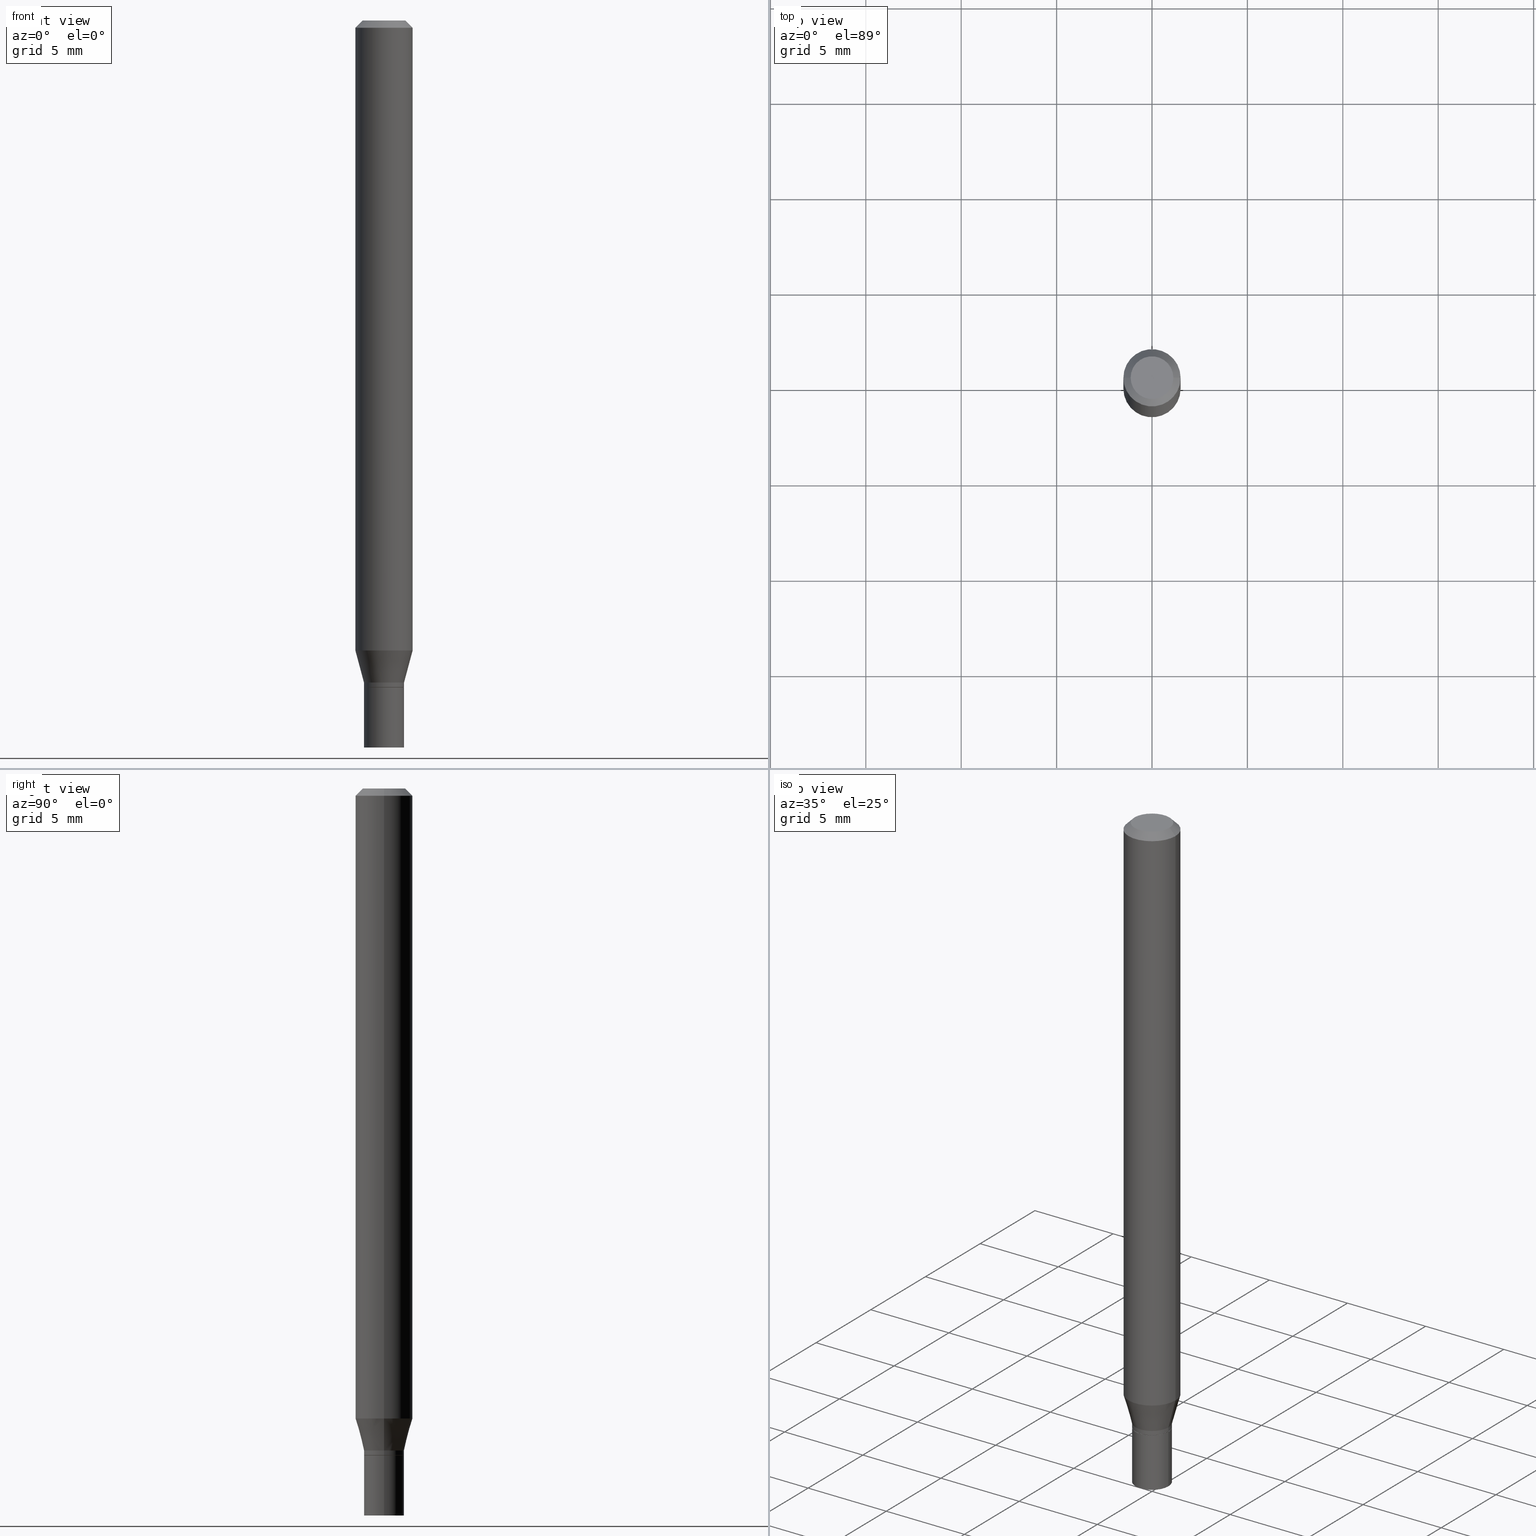
[diagram: canonical four-view strip — front | top / right | iso, engineering-drawing reading convention]
A machine part, canonical four-view strip (front | top / right | iso — engineering-drawing reading convention). The complete STEP part file that produces these views, byte-faithful:
ISO-10303-21;
HEADER;
FILE_DESCRIPTION (( 'STEP AP203' ),
    '1' );
FILE_NAME ('09270.STEP',
    '2024-03-14T18:13:27',
    ( '' ),
    ( '' ),
    'SwSTEP 2.0',
    'SolidWorks 2023',
    '' );
FILE_SCHEMA (( 'CONFIG_CONTROL_DESIGN' ));
ENDSEC;

DATA;
#1 = ORIENTED_EDGE ( 'NONE', *, *, #44, .F. ) ;
#2 = DIRECTION ( 'NONE',  ( 1.000000000000000000, -6.982962677686267499E-15, 4.876176775795936353E-29 ) ) ;
#3 = ORIENTED_EDGE ( 'NONE', *, *, #119, .T. ) ;
#4 = DIRECTION ( 'NONE',  ( -2.445468806185136597E-29, 3.491481338843145583E-15, 1.000000000000000000 ) ) ;
#5 = CIRCLE ( 'NONE', #368, 0.04134999999999999787 ) ;
#6 = CARTESIAN_POINT ( 'NONE',  ( 0.05904999999999999832, -4.647161662000212105E-16, -0.01499999999999999944 ) ) ;
#7 = VERTEX_POINT ( 'NONE', #9 ) ;
#8 = ORIENTED_EDGE ( 'NONE', *, *, #24, .F. ) ;
#9 = CARTESIAN_POINT ( 'NONE',  ( -0.05904999999999999832, -1.875798891048276269E-15, -0.01499999999999999944 ) ) ;
#10 = DIRECTION ( 'NONE',  ( -0.2588190451025217387, 5.211531920934551042E-15, 0.9659258262890679791 ) ) ;
#11 = CARTESIAN_POINT ( 'NONE',  ( 3.178724777524041310E-29, -4.538376532946583262E-15, -1.299842700706030918 ) ) ;
#12 = ORIENTED_EDGE ( 'NONE', *, *, #425, .T. ) ;
#13 = FACE_OUTER_BOUND ( 'NONE', #117, .T. ) ;
#14 = DIRECTION ( 'NONE',  ( 2.438088387897960049E-29, -3.491481338843145188E-15, -1.000000000000000000 ) ) ;
#15 = LINE ( 'NONE', #181, #462 ) ;
#16 = LINE ( 'NONE', #411, #347 ) ;
#17 = CARTESIAN_POINT ( 'NONE',  ( 0.000000000000000000, 0.000000000000000000, 0.000000000000000000 ) ) ;
#18 = DIRECTION ( 'NONE',  ( -2.445468806185136597E-29, 3.491481338843145583E-15, 1.000000000000000000 ) ) ;
#19 = CARTESIAN_POINT ( 'NONE',  ( 3.364720530430130200E-29, -4.803929174114285214E-15, -1.375900000000000123 ) ) ;
#20 = CONICAL_SURFACE ( 'NONE', #339, 0.04084999999999999742, 0.7853981633974739252 ) ;
#21 = COORDINATED_UNIVERSAL_TIME_OFFSET ( 5, 0, .BEHIND. ) ;
#22 = CARTESIAN_POINT ( 'NONE',  ( -0.04134999999999992154, -4.508374012208062298E-15, -1.375400000000000400 ) ) ;
#23 = ADVANCED_FACE ( 'NONE', ( #433 ), #461, .T. ) ;
#24 = EDGE_CURVE ( 'NONE', #296, #25, #360, .T. ) ;
#25 = VERTEX_POINT ( 'NONE', #386 ) ;
#26 = SHAPE_DEFINITION_REPRESENTATION ( #395, #158 ) ;
#27 = AXIS2_PLACEMENT_3D ( 'NONE', #396, #108, #148 ) ;
#28 = LOCAL_TIME ( 14, 13, 27.00000000000000000, #196 ) ;
#29 = PERSON_AND_ORGANIZATION_ROLE ( 'design_owner' ) ;
#30 = DIRECTION ( 'NONE',  ( -2.445468806185136597E-29, 3.491481338843145583E-15, 1.000000000000000000 ) ) ;
#31 = ORIENTED_EDGE ( 'NONE', *, *, #80, .F. ) ;
#32 = CARTESIAN_POINT ( 'NONE',  ( -0.04404999999999999888, 3.337856159934030687E-16, -2.090942999999208688E-16 ) ) ;
#33 = FACE_OUTER_BOUND ( 'NONE', #457, .T. ) ;
#34 = EDGE_CURVE ( 'NONE', #218, #341, #241, .T. ) ;
#35 = ORIENTED_EDGE ( 'NONE', *, *, #34, .T. ) ;
#36 = DIRECTION ( 'NONE',  ( 1.000000000000000000, -6.982962677686266711E-15, 4.876176775795936353E-29 ) ) ;
#37 = LINE ( 'NONE', #222, #151 ) ;
#38 = ORIENTED_EDGE ( 'NONE', *, *, #425, .F. ) ;
#39 = PLANE ( 'NONE',  #55 ) ;
#40 = ORIENTED_EDGE ( 'NONE', *, *, #224, .T. ) ;
#41 = DIRECTION ( 'NONE',  ( 1.000000000000000000, -6.982962677686261189E-15, 0.000000000000000000 ) ) ;
#42 = VECTOR ( 'NONE', #374, 39.37007874015748143 ) ;
#43 = LINE ( 'NONE', #463, #353 ) ;
#44 = EDGE_CURVE ( 'NONE', #333, #147, #98, .T. ) ;
#45 = VERTEX_POINT ( 'NONE', #338 ) ;
#46 = CARTESIAN_POINT ( 'NONE',  ( -0.04084999999999999742, -4.513672466556283912E-15, -1.375900000000000123 ) ) ;
#47 = CYLINDRICAL_SURFACE ( 'NONE', #130, 0.04134999999999992154 ) ;
#48 = AXIS2_PLACEMENT_3D ( 'NONE', #81, #18, #266 ) ;
#49 = EDGE_CURVE ( 'NONE', #254, #7, #412, .T. ) ;
#50 = CARTESIAN_POINT ( 'NONE',  ( 5.113335882009178277E-45, -7.300488465081862281E-31, -2.090942999999186255E-16 ) ) ;
#51 =( CONVERSION_BASED_UNIT ( 'INCH', #410 ) LENGTH_UNIT ( ) NAMED_UNIT ( #422 ) );
#52 = DIRECTION ( 'NONE',  ( -2.445468806185136877E-29, 3.491481338843145188E-15, 1.000000000000000000 ) ) ;
#53 = EDGE_CURVE ( 'NONE', #341, #218, #261, .T. ) ;
#54 = AXIS2_PLACEMENT_3D ( 'NONE', #269, #194, #343 ) ;
#55 = AXIS2_PLACEMENT_3D ( 'NONE', #280, #146, #74 ) ;
#56 = DIRECTION ( 'NONE',  ( -2.445468806185136877E-29, 3.491481338843145188E-15, 1.000000000000000000 ) ) ;
#57 = COORDINATED_UNIVERSAL_TIME_OFFSET ( 5, 0, .BEHIND. ) ;
#58 = EDGE_CURVE ( 'NONE', #437, #228, #16, .T. ) ;
#59 = VERTEX_POINT ( 'NONE', #22 ) ;
#60 = DIRECTION ( 'NONE',  ( 0.000000000000000000, 0.000000000000000000, 1.000000000000000000 ) ) ;
#61 = EDGE_CURVE ( 'NONE', #333, #7, #37, .T. ) ;
#62 = CIRCLE ( 'NONE', #292, 0.04084999999999999742 ) ;
#63 = APPROVAL_DATE_TIME ( #340, #93 ) ;
#64 = APPROVAL_PERSON_ORGANIZATION ( #157, #256, #416 ) ;
#65 = ORIENTED_EDGE ( 'NONE', *, *, #173, .T. ) ;
#66 = CARTESIAN_POINT ( 'NONE',  ( -0.04084999999999999742, -4.511023239382173499E-15, -1.375900000000000123 ) ) ;
#67 = ORIENTED_EDGE ( 'NONE', *, *, #428, .T. ) ;
#68 = CARTESIAN_POINT ( 'NONE',  ( 3.363497796027037398E-29, -4.802183433444863710E-15, -1.375400000000000400 ) ) ;
#69 = VECTOR ( 'NONE', #83, 39.37007874015748143 ) ;
#70 = CARTESIAN_POINT ( 'NONE',  ( 0.04084999999999999742, -5.089183199497769152E-15, -1.375900000000000123 ) ) ;
#71 = DIRECTION ( 'NONE',  ( 1.000000000000000000, -6.982962677686262766E-15, 0.000000000000000000 ) ) ;
#72 = ORIENTED_EDGE ( 'NONE', *, *, #373, .T. ) ;
#73 = PLANE ( 'NONE',  #143 ) ;
#74 = DIRECTION ( 'NONE',  ( 1.000000000000000000, -6.982962677686265922E-15, 4.876176775795935793E-29 ) ) ;
#75 = CARTESIAN_POINT ( 'NONE',  ( 2.887455067223607679E-16, 0.04134999999999519615, -1.375900000000000567 ) ) ;
#76 = CARTESIAN_POINT ( 'NONE',  ( 3.075995059520799729E-16, 0.04404999999999999888, -2.583469029759998662E-16 ) ) ;
#77 = CIRCLE ( 'NONE', #163, 0.05904999999999999832 ) ;
#78 = ORGANIZATION ( 'UNSPECIFIED', 'UNSPECIFIED', '' ) ;
#79 = MANIFOLD_SOLID_BREP ( 'Body-Move/Copy2[1]', #162 ) ;
#80 = EDGE_CURVE ( 'NONE', #356, #45, #5, .T. ) ;
#81 = CARTESIAN_POINT ( 'NONE',  ( 3.178724777524041310E-29, -4.538376532946583262E-15, -1.299842700706030918 ) ) ;
#82 = DIRECTION ( 'NONE',  ( 1.000000000000000000, -6.982962677686266711E-15, 0.000000000000000000 ) ) ;
#83 = DIRECTION ( 'NONE',  ( -0.7071067811865656694, 7.493145998870420424E-15, 0.7071067811865294761 ) ) ;
#84 = EDGE_CURVE ( 'NONE', #25, #437, #310, .T. ) ;
#85 = CONICAL_SURFACE ( 'NONE', #197, 0.05904999999999999832, 0.7853981633974553844 ) ;
#86 =( GEOMETRIC_REPRESENTATION_CONTEXT ( 3 ) GLOBAL_UNCERTAINTY_ASSIGNED_CONTEXT ( ( #322 ) ) GLOBAL_UNIT_ASSIGNED_CONTEXT ( ( #51, #301, #329 ) ) REPRESENTATION_CONTEXT ( 'NONE', 'WORKASPACE' ) );
#87 = DIRECTION ( 'NONE',  ( -2.445468806185136597E-29, 3.491481338843145583E-15, 1.000000000000000000 ) ) ;
#88 = FACE_OUTER_BOUND ( 'NONE', #316, .T. ) ;
#89 = PERSON_AND_ORGANIZATION ( #308, #78 ) ;
#90 = ORIENTED_EDGE ( 'NONE', *, *, #193, .F. ) ;
#91 = CC_DESIGN_SECURITY_CLASSIFICATION ( #278, ( #390 ) ) ;
#92 = DATE_AND_TIME ( #421, #243 ) ;
#93 = APPROVAL ( #346, 'UNSPECIFIED' ) ;
#94 = APPROVAL_DATE_TIME ( #92, #378 ) ;
#95 = ADVANCED_FACE ( 'NONE', ( #440 ), #73, .F. ) ;
#96 = DATE_TIME_ROLE ( 'classification_date' ) ;
#97 = CC_DESIGN_DATE_AND_TIME_ASSIGNMENT ( #200, #96, ( #278 ) ) ;
#98 = CIRCLE ( 'NONE', #363, 0.04404999999999999888 ) ;
#99 = AXIS2_PLACEMENT_3D ( 'NONE', #19, #30, #112 ) ;
#100 = LOCAL_TIME ( 14, 13, 27.00000000000000000, #57 ) ;
#101 = ORIENTED_EDGE ( 'NONE', *, *, #399, .F. ) ;
#102 = DIRECTION ( 'NONE',  ( 2.438088387897960049E-29, -3.491481338843145188E-15, -1.000000000000000000 ) ) ;
#103 = PRODUCT ( '09270', '09270', '', ( #164 ) ) ;
#104 = CARTESIAN_POINT ( 'NONE',  ( 0.04404999999999999888, -3.798447818264464023E-16, -2.090942999999162343E-16 ) ) ;
#105 = DIRECTION ( 'NONE',  ( 1.000000000000000000, -6.982962677686265922E-15, 4.876176775795935793E-29 ) ) ;
#106 = VERTEX_POINT ( 'NONE', #66 ) ;
#107 = ORIENTED_EDGE ( 'NONE', *, *, #315, .T. ) ;
#108 = DIRECTION ( 'NONE',  ( -2.445468806185136597E-29, 3.491481338843145583E-15, 1.000000000000000000 ) ) ;
#109 = VECTOR ( 'NONE', #10, 39.37007874015748854 ) ;
#110 = ORIENTED_EDGE ( 'NONE', *, *, #275, .F. ) ;
#111 = CARTESIAN_POINT ( 'NONE',  ( -0.04134999999999992154, -4.297002993484647567E-15, -1.365900000000000114 ) ) ;
#112 = DIRECTION ( 'NONE',  ( 1.000000000000000000, -6.982962677686261189E-15, 0.000000000000000000 ) ) ;
#113 = CARTESIAN_POINT ( 'NONE',  ( 3.364720530430130200E-29, -4.803929174114285214E-15, -1.375900000000000123 ) ) ;
#114 = EDGE_LOOP ( 'NONE', ( #298, #394, #264, #167 ) ) ;
#115 = PLANE ( 'NONE',  #427 ) ;
#116 = DIRECTION ( 'NONE',  ( -1.000000000000000000, 6.982962677686266711E-15, 0.000000000000000000 ) ) ;
#117 = EDGE_LOOP ( 'NONE', ( #40, #12, #90, #366 ) ) ;
#118 = AXIS2_PLACEMENT_3D ( 'NONE', #203, #350, #355 ) ;
#119 = EDGE_CURVE ( 'NONE', #7, #252, #215, .T. ) ;
#120 = CYLINDRICAL_SURFACE ( 'NONE', #271, 0.05904999999999999832 ) ;
#121 = ORIENTED_EDGE ( 'NONE', *, *, #61, .F. ) ;
#122 = DIRECTION ( 'NONE',  ( 1.000000000000000000, -6.982962677686262766E-15, 0.000000000000000000 ) ) ;
#123 = FACE_OUTER_BOUND ( 'NONE', #257, .T. ) ;
#124 = CIRCLE ( 'NONE', #451, 0.04134999999999999787 ) ;
#125 = LINE ( 'NONE', #184, #109 ) ;
#126 = ORIENTED_EDGE ( 'NONE', *, *, #345, .T. ) ;
#127 = ADVANCED_FACE ( 'NONE', ( #88 ), #327, .T. ) ;
#128 = PERSON_AND_ORGANIZATION ( #308, #78 ) ;
#129 = APPROVAL_STATUS ( 'not_yet_approved' ) ;
#130 = AXIS2_PLACEMENT_3D ( 'NONE', #262, #299, #404 ) ;
#131 = PERSON_AND_ORGANIZATION_ROLE ( 'creator' ) ;
#132 = PRODUCT_RELATED_PRODUCT_CATEGORY ( 'detail', '', ( #103 ) ) ;
#133 = PERSON_AND_ORGANIZATION ( #308, #78 ) ;
#134 = AXIS2_PLACEMENT_3D ( 'NONE', #250, #4, #36 ) ;
#135 = APPROVAL_PERSON_ORGANIZATION ( #128, #93, #240 ) ;
#136 = DIRECTION ( 'NONE',  ( -2.445468806185136877E-29, 3.491481338843145188E-15, 1.000000000000000000 ) ) ;
#137 = ORIENTED_EDGE ( 'NONE', *, *, #160, .T. ) ;
#138 = ADVANCED_FACE ( 'NONE', ( #33 ), #210, .T. ) ;
#139 = DIRECTION ( 'NONE',  ( 1.000000000000000000, -6.982962677686262766E-15, 0.000000000000000000 ) ) ;
#140 = ORIENTED_EDGE ( 'NONE', *, *, #53, .F. ) ;
#141 = CYLINDRICAL_SURFACE ( 'NONE', #285, 0.04134999999999999787 ) ;
#142 = ORIENTED_EDGE ( 'NONE', *, *, #399, .T. ) ;
#143 = AXIS2_PLACEMENT_3D ( 'NONE', #75, #14, #202 ) ;
#144 = DIRECTION ( 'NONE',  ( -2.445468806185136597E-29, 3.491481338843145583E-15, 1.000000000000000000 ) ) ;
#145 = CC_DESIGN_APPROVAL ( #256, ( #282 ) ) ;
#146 = DIRECTION ( 'NONE',  ( -2.438088387897960049E-29, 3.491481338843145188E-15, 1.000000000000000000 ) ) ;
#147 = VERTEX_POINT ( 'NONE', #104 ) ;
#148 = DIRECTION ( 'NONE',  ( 1.000000000000000000, -6.982962677686262766E-15, 0.000000000000000000 ) ) ;
#149 = DIRECTION ( 'NONE',  ( -2.445468806185136597E-29, 3.491481338843145583E-15, 1.000000000000000000 ) ) ;
#150 = CARTESIAN_POINT ( 'NONE',  ( 0.04134999999999999787, -5.092674680836612159E-15, -1.375900000000000123 ) ) ;
#151 = VECTOR ( 'NONE', #371, 39.37007874015748854 ) ;
#152 = CARTESIAN_POINT ( 'NONE',  ( -0.04134999999999992154, 2.938094212368008694E-16, -2.033979659820399598E-30 ) ) ;
#153 = CARTESIAN_POINT ( 'NONE',  ( 5.113335882009178277E-45, -7.300488465081862281E-31, -2.090942999999186255E-16 ) ) ;
#154 = DIRECTION ( 'NONE',  ( -1.000000000000000000, 6.982962677686266711E-15, 0.000000000000000000 ) ) ;
#155 = ADVANCED_FACE ( 'NONE', ( #312 ), #85, .T. ) ;
#156 = ORIENTED_EDGE ( 'NONE', *, *, #428, .F. ) ;
#157 = PERSON_AND_ORGANIZATION ( #308, #78 ) ;
#158 = ADVANCED_BREP_SHAPE_REPRESENTATION ( '09270', ( #79, #236, #445 ), #86 ) ;
#159 = ORIENTED_EDGE ( 'NONE', *, *, #290, .T. ) ;
#160 = EDGE_CURVE ( 'NONE', #228, #254, #77, .T. ) ;
#161 = CALENDAR_DATE ( 2024, 14, 3 ) ;
#162 = CLOSED_SHELL ( 'NONE', ( #303, #201, #138, #95 ) ) ;
#163 = AXIS2_PLACEMENT_3D ( 'NONE', #11, #192, #349 ) ;
#164 = MECHANICAL_CONTEXT ( 'NONE', #452, 'mechanical' ) ;
#165 = APPROVAL_DATE_TIME ( #189, #256 ) ;
#166 = CARTESIAN_POINT ( 'NONE',  ( 3.668203209277704895E-29, -5.237222008264718177E-15, -1.500000000000000222 ) ) ;
#167 = ORIENTED_EDGE ( 'NONE', *, *, #119, .F. ) ;
#168 = AXIS2_PLACEMENT_3D ( 'NONE', #170, #289, #397 ) ;
#169 = CARTESIAN_POINT ( 'NONE',  ( 3.364720530430130200E-29, -4.803929174114285214E-15, -1.375900000000000123 ) ) ;
#170 = CARTESIAN_POINT ( 'NONE',  ( 3.340265842368278094E-29, -4.769014360725852776E-15, -1.365900000000000114 ) ) ;
#171 = EDGE_LOOP ( 'NONE', ( #375, #156 ) ) ;
#172 = FACE_OUTER_BOUND ( 'NONE', #398, .T. ) ;
#173 = EDGE_CURVE ( 'NONE', #147, #252, #314, .T. ) ;
#174 = DIRECTION ( 'NONE',  ( -2.445468806185136597E-29, 3.491481338843145583E-15, 1.000000000000000000 ) ) ;
#175 = ORIENTED_EDGE ( 'NONE', *, *, #61, .T. ) ;
#176 = AXIS2_PLACEMENT_3D ( 'NONE', #438, #206, #2 ) ;
#177 = PLANE ( 'NONE',  #227 ) ;
#178 = CARTESIAN_POINT ( 'NONE',  ( 0.05904999999999999832, -4.950720479063956605E-15, -1.299842700706030918 ) ) ;
#179 = DIRECTION ( 'NONE',  ( 1.000000000000000000, -6.982962677686266711E-15, 0.000000000000000000 ) ) ;
#180 = ORIENTED_EDGE ( 'NONE', *, *, #84, .T. ) ;
#181 = CARTESIAN_POINT ( 'NONE',  ( -0.04134999999999999787, 2.938094212368014117E-16, -2.033979659820403452E-30 ) ) ;
#182 = CIRCLE ( 'NONE', #456, 0.04084999999999999742 ) ;
#183 = CARTESIAN_POINT ( 'NONE',  ( 3.668203209277705088E-31, -5.237222008264718399E-17, -0.01499999999999999944 ) ) ;
#184 = CARTESIAN_POINT ( 'NONE',  ( -0.04134999999999992154, -4.475204939489051364E-15, -1.365900000000000114 ) ) ;
#185 = PERSON_AND_ORGANIZATION_ROLE ( 'creator' ) ;
#186 = VECTOR ( 'NONE', #56, 39.37007874015748143 ) ;
#187 = AXIS2_PLACEMENT_3D ( 'NONE', #50, #335, #291 ) ;
#188 = CONICAL_SURFACE ( 'NONE', #419, 0.05904999999999999832, 0.7853981633974553844 ) ;
#189 = DATE_AND_TIME ( #161, #28 ) ;
#190 = EDGE_LOOP ( 'NONE', ( #212, #231, #281, #324 ) ) ;
#191 = ORIENTED_EDGE ( 'NONE', *, *, #315, .F. ) ;
#192 = DIRECTION ( 'NONE',  ( -2.445468806185136597E-29, 3.491481338843145583E-15, 1.000000000000000000 ) ) ;
#193 = EDGE_CURVE ( 'NONE', #437, #204, #267, .T. ) ;
#194 = DIRECTION ( 'NONE',  ( -2.445468806185136597E-29, 3.491481338843145583E-15, 1.000000000000000000 ) ) ;
#195 = EDGE_LOOP ( 'NONE', ( #198, #142, #31, #286 ) ) ;
#196 = COORDINATED_UNIVERSAL_TIME_OFFSET ( 5, 0, .BEHIND. ) ;
#197 = AXIS2_PLACEMENT_3D ( 'NONE', #207, #239, #116 ) ;
#198 = ORIENTED_EDGE ( 'NONE', *, *, #53, .T. ) ;
#199 = LOCAL_TIME ( 14, 13, 27.00000000000000000, #21 ) ;
#200 = DATE_AND_TIME ( #381, #409 ) ;
#201 = ADVANCED_FACE ( 'NONE', ( #352 ), #39, .F. ) ;
#202 = DIRECTION ( 'NONE',  ( -1.000000000000000000, 6.982962677686265922E-15, -4.876176775795935793E-29 ) ) ;
#203 = CARTESIAN_POINT ( 'NONE',  ( 0.000000000000000000, 0.000000000000000000, 0.000000000000000000 ) ) ;
#204 = VERTEX_POINT ( 'NONE', #111 ) ;
#205 = EDGE_LOOP ( 'NONE', ( #137, #330, #414, #258 ) ) ;
#206 = DIRECTION ( 'NONE',  ( -2.445468806185136597E-29, 3.491481338843145583E-15, 1.000000000000000000 ) ) ;
#207 = CARTESIAN_POINT ( 'NONE',  ( 3.668203209277705088E-31, -5.237222008264718399E-17, -0.01499999999999999944 ) ) ;
#208 = CIRCLE ( 'NONE', #187, 0.04404999999999999888 ) ;
#209 = DIRECTION ( 'NONE',  ( -2.445468806185136597E-29, 3.491481338843145583E-15, 1.000000000000000000 ) ) ;
#210 = CYLINDRICAL_SURFACE ( 'NONE', #118, 0.04134999999999999787 ) ;
#211 = DIRECTION ( 'NONE',  ( -2.445468806185136597E-29, 3.491481338843145583E-15, 1.000000000000000000 ) ) ;
#212 = ORIENTED_EDGE ( 'NONE', *, *, #443, .F. ) ;
#213 = DIRECTION ( 'NONE',  ( 0.7071067811865524577, -7.319954787623271823E-15, -0.7071067811865424657 ) ) ;
#214 = EDGE_LOOP ( 'NONE', ( #159, #288, #249, #8 ) ) ;
#215 = CIRCLE ( 'NONE', #408, 0.05904999999999999832 ) ;
#216 = ORIENTED_EDGE ( 'NONE', *, *, #233, .T. ) ;
#217 = DIRECTION ( 'NONE',  ( -1.000000000000000000, 6.982962677686265922E-15, -4.876176775795935793E-29 ) ) ;
#218 = VERTEX_POINT ( 'NONE', #388 ) ;
#219 = ORIENTED_EDGE ( 'NONE', *, *, #233, .F. ) ;
#220 = DIRECTION ( 'NONE',  ( -2.445468806185136597E-29, 3.491481338843145583E-15, 1.000000000000000000 ) ) ;
#221 = DIRECTION ( 'NONE',  ( -2.445468806185136597E-29, 3.491481338843145583E-15, 1.000000000000000000 ) ) ;
#222 = CARTESIAN_POINT ( 'NONE',  ( -0.05904999999999999832, 3.599717260347268549E-16, -0.01499999999999999944 ) ) ;
#223 = CARTESIAN_POINT ( 'NONE',  ( 3.668203209277705088E-31, -5.237222008264718399E-17, -0.01499999999999999944 ) ) ;
#224 = EDGE_CURVE ( 'NONE', #25, #59, #385, .T. ) ;
#225 = VECTOR ( 'NONE', #321, 39.37007874015748143 ) ;
#226 = CARTESIAN_POINT ( 'NONE',  ( 0.04134999999999992154, -5.057759867448178932E-15, -1.365900000000000114 ) ) ;
#227 = AXIS2_PLACEMENT_3D ( 'NONE', #76, #102, #217 ) ;
#228 = VERTEX_POINT ( 'NONE', #178 ) ;
#229 = DIRECTION ( 'NONE',  ( 2.445468806185136597E-29, -3.491481338843145583E-15, -1.000000000000000000 ) ) ;
#230 = CC_DESIGN_PERSON_AND_ORGANIZATION_ASSIGNMENT ( #133, #185, ( #390 ) ) ;
#231 = ORIENTED_EDGE ( 'NONE', *, *, #275, .T. ) ;
#232 = APPLICATION_PROTOCOL_DEFINITION ( 'international standard', 'config_control_design', 1994, #293 ) ;
#233 = EDGE_CURVE ( 'NONE', #59, #25, #242, .T. ) ;
#234 = AXIS2_PLACEMENT_3D ( 'NONE', #362, #144, #287 ) ;
#235 = DIRECTION ( 'NONE',  ( 0.2588190451025217387, 1.565188264969619207E-15, 0.9659258262890679791 ) ) ;
#236 = MANIFOLD_SOLID_BREP ( 'Body-Move/Copy2[2]', #450 ) ;
#237 = EDGE_LOOP ( 'NONE', ( #377, #107 ) ) ;
#238 = COORDINATED_UNIVERSAL_TIME_OFFSET ( 5, 0, .BEHIND. ) ;
#239 = DIRECTION ( 'NONE',  ( 2.445468806185136597E-29, -3.491481338843145583E-15, -1.000000000000000000 ) ) ;
#240 = APPROVAL_ROLE ( '' ) ;
#241 = CIRCLE ( 'NONE', #300, 0.04134999999999999787 ) ;
#242 = CIRCLE ( 'NONE', #334, 0.04134999999999992154 ) ;
#243 = LOCAL_TIME ( 14, 13, 27.00000000000000000, #309 ) ;
#244 = ADVANCED_FACE ( 'NONE', ( #431 ), #115, .F. ) ;
#245 = APPLICATION_PROTOCOL_DEFINITION ( 'international standard', 'config_control_design', 1994, #452 ) ;
#246 = DIRECTION ( 'NONE',  ( -2.445468806185136877E-29, 3.491481338843145188E-15, 1.000000000000000000 ) ) ;
#247 = CARTESIAN_POINT ( 'NONE',  ( 0.04134999999999992154, -2.887455067223266003E-16, 2.016299096791615782E-30 ) ) ;
#248 = DIRECTION ( 'NONE',  ( 1.000000000000000000, -6.982962677686261189E-15, 0.000000000000000000 ) ) ;
#249 = ORIENTED_EDGE ( 'NONE', *, *, #224, .F. ) ;
#250 = CARTESIAN_POINT ( 'NONE',  ( 0.000000000000000000, 0.000000000000000000, 0.000000000000000000 ) ) ;
#251 = ADVANCED_FACE ( 'NONE', ( #441 ), #260, .T. ) ;
#252 = VERTEX_POINT ( 'NONE', #6 ) ;
#253 = VECTOR ( 'NONE', #246, 39.37007874015748143 ) ;
#254 = VERTEX_POINT ( 'NONE', #429 ) ;
#255 = FACE_OUTER_BOUND ( 'NONE', #432, .T. ) ;
#256 = APPROVAL ( #129, 'UNSPECIFIED' ) ;
#257 = EDGE_LOOP ( 'NONE', ( #442, #65, #72, #121 ) ) ;
#258 = ORIENTED_EDGE ( 'NONE', *, *, #319, .F. ) ;
#259 = FACE_OUTER_BOUND ( 'NONE', #195, .T. ) ;
#260 = CYLINDRICAL_SURFACE ( 'NONE', #134, 0.05904999999999999832 ) ;
#261 = CIRCLE ( 'NONE', #54, 0.04134999999999999787 ) ;
#262 = CARTESIAN_POINT ( 'NONE',  ( 0.000000000000000000, 0.000000000000000000, 0.000000000000000000 ) ) ;
#263 = DIRECTION ( 'NONE',  ( -2.445468806185136597E-29, 3.491481338843145583E-15, 1.000000000000000000 ) ) ;
#264 = ORIENTED_EDGE ( 'NONE', *, *, #319, .T. ) ;
#265 = CARTESIAN_POINT ( 'NONE',  ( 3.364720530430130200E-29, -4.803929174114285214E-15, -1.375900000000000123 ) ) ;
#266 = DIRECTION ( 'NONE',  ( 1.000000000000000000, -6.982962677686273021E-15, 0.000000000000000000 ) ) ;
#267 = CIRCLE ( 'NONE', #168, 0.04134999999999992154 ) ;
#268 = ADVANCED_FACE ( 'NONE', ( #255 ), #393, .T. ) ;
#269 = CARTESIAN_POINT ( 'NONE',  ( 3.668203209277704895E-29, -5.237222008264718177E-15, -1.500000000000000222 ) ) ;
#270 = DATE_TIME_ROLE ( 'creation_date' ) ;
#271 = AXIS2_PLACEMENT_3D ( 'NONE', #17, #367, #331 ) ;
#272 = EDGE_LOOP ( 'NONE', ( #304, #359, #455, #344 ) ) ;
#273 = PERSON_AND_ORGANIZATION ( #308, #78 ) ;
#274 = PERSON_AND_ORGANIZATION_ROLE ( 'classification_officer' ) ;
#275 = EDGE_CURVE ( 'NONE', #204, #437, #436, .T. ) ;
#276 = DIRECTION ( 'NONE',  ( -2.445468806185136597E-29, 3.491481338843145583E-15, 1.000000000000000000 ) ) ;
#277 = AXIS2_PLACEMENT_3D ( 'NONE', #405, #449, #122 ) ;
#278 = SECURITY_CLASSIFICATION ( '', '', #384 ) ;
#279 = DIRECTION ( 'NONE',  ( -2.445468806185136597E-29, 3.491481338843145583E-15, 1.000000000000000000 ) ) ;
#280 = CARTESIAN_POINT ( 'NONE',  ( 3.576687321579069994E-29, -5.368277968210015545E-15, -1.500000000000000222 ) ) ;
#281 = ORIENTED_EDGE ( 'NONE', *, *, #58, .T. ) ;
#282 = PRODUCT_DEFINITION ( 'UNKNOWN', '', #390, #464 ) ;
#283 = DIRECTION ( 'NONE',  ( 1.000000000000000000, -6.982962677686273021E-15, 0.000000000000000000 ) ) ;
#284 = EDGE_LOOP ( 'NONE', ( #382, #1, #175, #3 ) ) ;
#285 = AXIS2_PLACEMENT_3D ( 'NONE', #389, #209, #354 ) ;
#286 = ORIENTED_EDGE ( 'NONE', *, *, #345, .F. ) ;
#287 = DIRECTION ( 'NONE',  ( 1.000000000000000000, -6.982962677686262766E-15, 0.000000000000000000 ) ) ;
#288 = ORIENTED_EDGE ( 'NONE', *, *, #361, .T. ) ;
#289 = DIRECTION ( 'NONE',  ( -2.445468806185136597E-29, 3.491481338843145583E-15, 1.000000000000000000 ) ) ;
#290 = EDGE_CURVE ( 'NONE', #296, #106, #62, .T. ) ;
#291 = DIRECTION ( 'NONE',  ( 1.000000000000000000, -6.982962677686265922E-15, 4.888540261209747396E-29 ) ) ;
#292 = AXIS2_PLACEMENT_3D ( 'NONE', #113, #211, #41 ) ;
#293 = APPLICATION_CONTEXT ( 'configuration controlled 3d designs of mechanical parts and assemblies' ) ;
#294 = LINE ( 'NONE', #152, #317 ) ;
#295 = DIRECTION ( 'NONE',  ( 1.000000000000000000, -6.982962677686273021E-15, 0.000000000000000000 ) ) ;
#296 = VERTEX_POINT ( 'NONE', #70 ) ;
#297 = DIRECTION ( 'NONE',  ( -2.445468806185136877E-29, 3.491481338843145188E-15, 1.000000000000000000 ) ) ;
#298 = ORIENTED_EDGE ( 'NONE', *, *, #49, .F. ) ;
#299 = DIRECTION ( 'NONE',  ( -2.445468806185136597E-29, 3.491481338843145583E-15, 1.000000000000000000 ) ) ;
#300 = AXIS2_PLACEMENT_3D ( 'NONE', #166, #221, #295 ) ;
#301 =( NAMED_UNIT ( * ) PLANE_ANGLE_UNIT ( ) SI_UNIT ( $, .RADIAN. ) );
#302 = AXIS2_PLACEMENT_3D ( 'NONE', #400, #174, #71 ) ;
#303 = ADVANCED_FACE ( 'NONE', ( #259 ), #141, .T. ) ;
#304 = ORIENTED_EDGE ( 'NONE', *, *, #193, .T. ) ;
#305 = PERSON_AND_ORGANIZATION ( #308, #78 ) ;
#306 = PERSON_AND_ORGANIZATION ( #308, #78 ) ;
#307 = CIRCLE ( 'NONE', #48, 0.05904999999999999832 ) ;
#308 = PERSON ( 'UNSPECIFIED', 'UNSPECIFIED', 'UNSPECIFIED', ('UNSPECIFIED'), ('UNSPECIFIED'), ('UNSPECIFIED') ) ;
#309 = COORDINATED_UNIVERSAL_TIME_OFFSET ( 5, 0, .BEHIND. ) ;
#310 = LINE ( 'NONE', #247, #253 ) ;
#311 = ADVANCED_FACE ( 'NONE', ( #172 ), #177, .F. ) ;
#312 = FACE_OUTER_BOUND ( 'NONE', #284, .T. ) ;
#313 = CARTESIAN_POINT ( 'NONE',  ( 0.000000000000000000, 0.000000000000000000, 0.000000000000000000 ) ) ;
#314 = LINE ( 'NONE', #383, #376 ) ;
#315 = EDGE_CURVE ( 'NONE', #45, #356, #124, .T. ) ;
#316 = EDGE_LOOP ( 'NONE', ( #351, #67, #342, #219 ) ) ;
#317 = VECTOR ( 'NONE', #297, 39.37007874015748143 ) ;
#318 = CC_DESIGN_APPROVAL ( #93, ( #278 ) ) ;
#319 = EDGE_CURVE ( 'NONE', #228, #252, #43, .T. ) ;
#320 = FACE_OUTER_BOUND ( 'NONE', #214, .T. ) ;
#321 = DIRECTION ( 'NONE',  ( 0.7071067811865656694, -2.468850131082446387E-15, 0.7071067811865294761 ) ) ;
#322 = UNCERTAINTY_MEASURE_WITH_UNIT (LENGTH_MEASURE( 1.000000000000000082E-05 ), #51, 'distance_accuracy_value', 'NONE');
#323 = CARTESIAN_POINT ( 'NONE',  ( 3.364720530430130200E-29, -4.803929174114285214E-15, -1.375900000000000123 ) ) ;
#324 = ORIENTED_EDGE ( 'NONE', *, *, #435, .F. ) ;
#325 = DIRECTION ( 'NONE',  ( -2.445468806185136597E-29, 3.491481338843145583E-15, 1.000000000000000000 ) ) ;
#326 = CARTESIAN_POINT ( 'NONE',  ( 3.668203209277705088E-31, -5.237222008264718399E-17, -0.01499999999999999944 ) ) ;
#327 = CONICAL_SURFACE ( 'NONE', #99, 0.04084999999999999742, 0.7853981633974739252 ) ;
#328 = DIRECTION ( 'NONE',  ( -2.438088387897960049E-29, 3.491481338843145188E-15, 1.000000000000000000 ) ) ;
#329 =( NAMED_UNIT ( * ) SI_UNIT ( $, .STERADIAN. ) SOLID_ANGLE_UNIT ( ) );
#330 = ORIENTED_EDGE ( 'NONE', *, *, #49, .T. ) ;
#331 = DIRECTION ( 'NONE',  ( 1.000000000000000000, -6.982962677686266711E-15, 4.876176775795936353E-29 ) ) ;
#332 = ADVANCED_FACE ( 'NONE', ( #320 ), #20, .T. ) ;
#333 = VERTEX_POINT ( 'NONE', #32 ) ;
#334 = AXIS2_PLACEMENT_3D ( 'NONE', #68, #325, #139 ) ;
#335 = DIRECTION ( 'NONE',  ( -2.445468806185136597E-29, 3.491481338843145583E-15, 1.000000000000000000 ) ) ;
#336 = CC_DESIGN_PERSON_AND_ORGANIZATION_ASSIGNMENT ( #458, #29, ( #103 ) ) ;
#337 = FACE_OUTER_BOUND ( 'NONE', #205, .T. ) ;
#338 = CARTESIAN_POINT ( 'NONE',  ( -0.04134999999999999787, -4.726766169952701467E-15, -1.375900000000000123 ) ) ;
#339 = AXIS2_PLACEMENT_3D ( 'NONE', #434, #279, #248 ) ;
#340 = DATE_AND_TIME ( #380, #100 ) ;
#341 = VERTEX_POINT ( 'NONE', #466 ) ;
#342 = ORIENTED_EDGE ( 'NONE', *, *, #24, .T. ) ;
#343 = DIRECTION ( 'NONE',  ( 1.000000000000000000, -6.982962677686273021E-15, 0.000000000000000000 ) ) ;
#344 = ORIENTED_EDGE ( 'NONE', *, *, #58, .F. ) ;
#345 = EDGE_CURVE ( 'NONE', #341, #356, #369, .T. ) ;
#346 = APPROVAL_STATUS ( 'not_yet_approved' ) ;
#347 = VECTOR ( 'NONE', #235, 39.37007874015748854 ) ;
#348 = DATE_AND_TIME ( #453, #199 ) ;
#349 = DIRECTION ( 'NONE',  ( 1.000000000000000000, -6.982962677686273021E-15, 0.000000000000000000 ) ) ;
#350 = DIRECTION ( 'NONE',  ( -2.445468806185136597E-29, 3.491481338843145583E-15, 1.000000000000000000 ) ) ;
#351 = ORIENTED_EDGE ( 'NONE', *, *, #361, .F. ) ;
#352 = FACE_OUTER_BOUND ( 'NONE', #391, .T. ) ;
#353 = VECTOR ( 'NONE', #136, 39.37007874015748143 ) ;
#354 = DIRECTION ( 'NONE',  ( 1.000000000000000000, -6.982962677686267499E-15, 4.876176775795936353E-29 ) ) ;
#355 = DIRECTION ( 'NONE',  ( 1.000000000000000000, -6.982962677686267499E-15, 4.876176775795936353E-29 ) ) ;
#356 = VERTEX_POINT ( 'NONE', #150 ) ;
#357 = ADVANCED_FACE ( 'NONE', ( #446 ), #426, .T. ) ;
#358 = CARTESIAN_POINT ( 'NONE',  ( 3.364720530430130200E-29, -4.803929174114285214E-15, -1.375900000000000123 ) ) ;
#359 = ORIENTED_EDGE ( 'NONE', *, *, #443, .T. ) ;
#360 = LINE ( 'NONE', #444, #225 ) ;
#361 = EDGE_CURVE ( 'NONE', #106, #59, #448, .T. ) ;
#362 = CARTESIAN_POINT ( 'NONE',  ( 3.363497796027037398E-29, -4.802183433444863710E-15, -1.375400000000000400 ) ) ;
#363 = AXIS2_PLACEMENT_3D ( 'NONE', #153, #263, #370 ) ;
#364 = APPROVAL_PERSON_ORGANIZATION ( #273, #378, #418 ) ;
#365 = DIRECTION ( 'NONE',  ( -2.445468806185136597E-29, 3.491481338843145583E-15, 1.000000000000000000 ) ) ;
#366 = ORIENTED_EDGE ( 'NONE', *, *, #84, .F. ) ;
#367 = DIRECTION ( 'NONE',  ( -2.445468806185136597E-29, 3.491481338843145583E-15, 1.000000000000000000 ) ) ;
#368 = AXIS2_PLACEMENT_3D ( 'NONE', #169, #276, #465 ) ;
#369 = LINE ( 'NONE', #413, #42 ) ;
#370 = DIRECTION ( 'NONE',  ( 1.000000000000000000, -6.982962677686265922E-15, 4.888540261209747396E-29 ) ) ;
#371 = DIRECTION ( 'NONE',  ( -0.7071067811865524577, 2.468850131082309125E-15, -0.7071067811865424657 ) ) ;
#372 =( LENGTH_UNIT ( ) NAMED_UNIT ( * ) SI_UNIT ( $, .METRE. ) );
#373 = EDGE_CURVE ( 'NONE', #252, #7, #401, .T. ) ;
#374 = DIRECTION ( 'NONE',  ( -2.445468806185136877E-29, 3.491481338843145188E-15, 1.000000000000000000 ) ) ;
#375 = ORIENTED_EDGE ( 'NONE', *, *, #290, .F. ) ;
#376 = VECTOR ( 'NONE', #213, 39.37007874015748854 ) ;
#377 = ORIENTED_EDGE ( 'NONE', *, *, #80, .T. ) ;
#378 = APPROVAL ( #387, 'UNSPECIFIED' ) ;
#379 = EDGE_CURVE ( 'NONE', #147, #333, #208, .T. ) ;
#380 = CALENDAR_DATE ( 2024, 14, 3 ) ;
#381 = CALENDAR_DATE ( 2024, 14, 3 ) ;
#382 = ORIENTED_EDGE ( 'NONE', *, *, #173, .F. ) ;
#383 = CARTESIAN_POINT ( 'NONE',  ( 0.05904999999999999832, -4.574846268510561447E-16, -0.01499999999999999944 ) ) ;
#384 = SECURITY_CLASSIFICATION_LEVEL ( 'unclassified' ) ;
#385 = CIRCLE ( 'NONE', #234, 0.04134999999999992154 ) ;
#386 = CARTESIAN_POINT ( 'NONE',  ( 0.04134999999999992154, -5.090928940167189867E-15, -1.375400000000000400 ) ) ;
#387 = APPROVAL_STATUS ( 'not_yet_approved' ) ;
#388 = CARTESIAN_POINT ( 'NONE',  ( -0.04134999999999999787, -4.726766169952701467E-15, -1.500000000000000222 ) ) ;
#389 = CARTESIAN_POINT ( 'NONE',  ( 0.000000000000000000, 0.000000000000000000, 0.000000000000000000 ) ) ;
#390 = PRODUCT_DEFINITION_FORMATION_WITH_SPECIFIED_SOURCE ( 'ANY', '', #103, .NOT_KNOWN. ) ;
#391 = EDGE_LOOP ( 'NONE', ( #140, #424 ) ) ;
#392 = ORIENTED_EDGE ( 'NONE', *, *, #379, .T. ) ;
#393 = CYLINDRICAL_SURFACE ( 'NONE', #176, 0.04134999999999992154 ) ;
#394 = ORIENTED_EDGE ( 'NONE', *, *, #435, .T. ) ;
#395 = PRODUCT_DEFINITION_SHAPE ( 'NONE', 'NONE',  #282 ) ;
#396 = CARTESIAN_POINT ( 'NONE',  ( 3.340265842368278094E-29, -4.769014360725852776E-15, -1.365900000000000114 ) ) ;
#397 = DIRECTION ( 'NONE',  ( 1.000000000000000000, -6.982962677686262766E-15, 0.000000000000000000 ) ) ;
#398 = EDGE_LOOP ( 'NONE', ( #447, #392 ) ) ;
#399 = EDGE_CURVE ( 'NONE', #218, #45, #15, .T. ) ;
#400 = CARTESIAN_POINT ( 'NONE',  ( 3.340265842368278094E-29, -4.769014360725852776E-15, -1.365900000000000114 ) ) ;
#401 = CIRCLE ( 'NONE', #417, 0.05904999999999999832 ) ;
#402 = CC_DESIGN_APPROVAL ( #378, ( #390 ) ) ;
#403 = ADVANCED_FACE ( 'NONE', ( #337 ), #120, .T. ) ;
#404 = DIRECTION ( 'NONE',  ( 1.000000000000000000, -6.982962677686267499E-15, 4.876176775795936353E-29 ) ) ;
#405 = CARTESIAN_POINT ( 'NONE',  ( 3.340265842368278094E-29, -4.769014360725852776E-15, -1.365900000000000114 ) ) ;
#406 = CC_DESIGN_PERSON_AND_ORGANIZATION_ASSIGNMENT ( #306, #131, ( #282 ) ) ;
#407 = DIRECTION ( 'NONE',  ( 1.000000000000000000, -6.982962677686261189E-15, 0.000000000000000000 ) ) ;
#408 = AXIS2_PLACEMENT_3D ( 'NONE', #326, #149, #82 ) ;
#409 = LOCAL_TIME ( 14, 13, 27.00000000000000000, #238 ) ;
#410 = LENGTH_MEASURE_WITH_UNIT ( LENGTH_MEASURE( 0.02539999999999999897 ), #372 );
#411 = CARTESIAN_POINT ( 'NONE',  ( 0.04134999999999992154, -5.057759867448178932E-15, -1.365900000000000114 ) ) ;
#412 = LINE ( 'NONE', #415, #186 ) ;
#413 = CARTESIAN_POINT ( 'NONE',  ( 0.04134999999999999787, -2.887455067223271427E-16, 2.016299096791619635E-30 ) ) ;
#414 = ORIENTED_EDGE ( 'NONE', *, *, #373, .F. ) ;
#415 = CARTESIAN_POINT ( 'NONE',  ( -0.05904999999999999832, 4.195754854663391478E-16, -2.904631170795521892E-30 ) ) ;
#416 = APPROVAL_ROLE ( '' ) ;
#417 = AXIS2_PLACEMENT_3D ( 'NONE', #223, #87, #179 ) ;
#418 = APPROVAL_ROLE ( '' ) ;
#419 = AXIS2_PLACEMENT_3D ( 'NONE', #183, #229, #154 ) ;
#420 = ADVANCED_FACE ( 'NONE', ( #13 ), #47, .T. ) ;
#421 = CALENDAR_DATE ( 2024, 14, 3 ) ;
#422 = DIMENSIONAL_EXPONENTS ( 1.000000000000000000, 0.000000000000000000, 0.000000000000000000, 0.000000000000000000, 0.000000000000000000, 0.000000000000000000, 0.000000000000000000 ) ;
#423 = CC_DESIGN_PERSON_AND_ORGANIZATION_ASSIGNMENT ( #89, #274, ( #278 ) ) ;
#424 = ORIENTED_EDGE ( 'NONE', *, *, #34, .F. ) ;
#425 = EDGE_CURVE ( 'NONE', #59, #204, #294, .T. ) ;
#426 = CONICAL_SURFACE ( 'NONE', #277, 0.04134999999999992154, 0.2617993877991504625 ) ;
#427 = AXIS2_PLACEMENT_3D ( 'NONE', #358, #328, #105 ) ;
#428 = EDGE_CURVE ( 'NONE', #106, #296, #182, .T. ) ;
#429 = CARTESIAN_POINT ( 'NONE',  ( -0.05904999999999999832, -4.118801047480243769E-15, -1.299842700706030918 ) ) ;
#430 = CC_DESIGN_DATE_AND_TIME_ASSIGNMENT ( #348, #270, ( #282 ) ) ;
#431 = FACE_OUTER_BOUND ( 'NONE', #171, .T. ) ;
#432 = EDGE_LOOP ( 'NONE', ( #38, #216, #180, #110 ) ) ;
#433 = FACE_OUTER_BOUND ( 'NONE', #190, .T. ) ;
#434 = CARTESIAN_POINT ( 'NONE',  ( 3.364720530430130200E-29, -4.803929174114285214E-15, -1.375900000000000123 ) ) ;
#435 = EDGE_CURVE ( 'NONE', #254, #228, #307, .T. ) ;
#436 = CIRCLE ( 'NONE', #302, 0.04134999999999992154 ) ;
#437 = VERTEX_POINT ( 'NONE', #226 ) ;
#438 = CARTESIAN_POINT ( 'NONE',  ( 0.000000000000000000, 0.000000000000000000, 0.000000000000000000 ) ) ;
#439 = CC_DESIGN_PERSON_AND_ORGANIZATION_ASSIGNMENT ( #305, #459, ( #390 ) ) ;
#440 = FACE_OUTER_BOUND ( 'NONE', #237, .T. ) ;
#441 = FACE_OUTER_BOUND ( 'NONE', #114, .T. ) ;
#442 = ORIENTED_EDGE ( 'NONE', *, *, #379, .F. ) ;
#443 = EDGE_CURVE ( 'NONE', #204, #254, #125, .T. ) ;
#444 = CARTESIAN_POINT ( 'NONE',  ( 0.04084999999999999742, -5.089183199497769152E-15, -1.375900000000000123 ) ) ;
#445 = AXIS2_PLACEMENT_3D ( 'NONE', #313, #60, #460 ) ;
#446 = FACE_OUTER_BOUND ( 'NONE', #272, .T. ) ;
#447 = ORIENTED_EDGE ( 'NONE', *, *, #44, .T. ) ;
#448 = LINE ( 'NONE', #46, #69 ) ;
#449 = DIRECTION ( 'NONE',  ( -2.445468806185136597E-29, 3.491481338843145583E-15, 1.000000000000000000 ) ) ;
#450 = CLOSED_SHELL ( 'NONE', ( #420, #332, #454, #403, #357, #23, #251, #155, #311, #244, #127, #268 ) ) ;
#451 = AXIS2_PLACEMENT_3D ( 'NONE', #323, #365, #283 ) ;
#452 = APPLICATION_CONTEXT ( 'configuration controlled 3d designs of mechanical parts and assemblies' ) ;
#453 = CALENDAR_DATE ( 2024, 14, 3 ) ;
#454 = ADVANCED_FACE ( 'NONE', ( #123 ), #188, .T. ) ;
#455 = ORIENTED_EDGE ( 'NONE', *, *, #160, .F. ) ;
#456 = AXIS2_PLACEMENT_3D ( 'NONE', #265, #220, #407 ) ;
#457 = EDGE_LOOP ( 'NONE', ( #101, #35, #126, #191 ) ) ;
#458 = PERSON_AND_ORGANIZATION ( #308, #78 ) ;
#459 = PERSON_AND_ORGANIZATION_ROLE ( 'design_supplier' ) ;
#460 = DIRECTION ( 'NONE',  ( 1.000000000000000000, 0.000000000000000000, 0.000000000000000000 ) ) ;
#461 = CONICAL_SURFACE ( 'NONE', #27, 0.04134999999999992154, 0.2617993877991504625 ) ;
#462 = VECTOR ( 'NONE', #52, 39.37007874015748143 ) ;
#463 = CARTESIAN_POINT ( 'NONE',  ( 0.05904999999999999832, -4.123439461173740327E-16, 2.879382386107500220E-30 ) ) ;
#464 = DESIGN_CONTEXT ( 'detailed design', #293, 'design' ) ;
#465 = DIRECTION ( 'NONE',  ( 1.000000000000000000, -6.982962677686273021E-15, 0.000000000000000000 ) ) ;
#466 = CARTESIAN_POINT ( 'NONE',  ( 0.04134999999999999787, -5.525967514987045911E-15, -1.500000000000000222 ) ) ;
ENDSEC;
END-ISO-10303-21;
